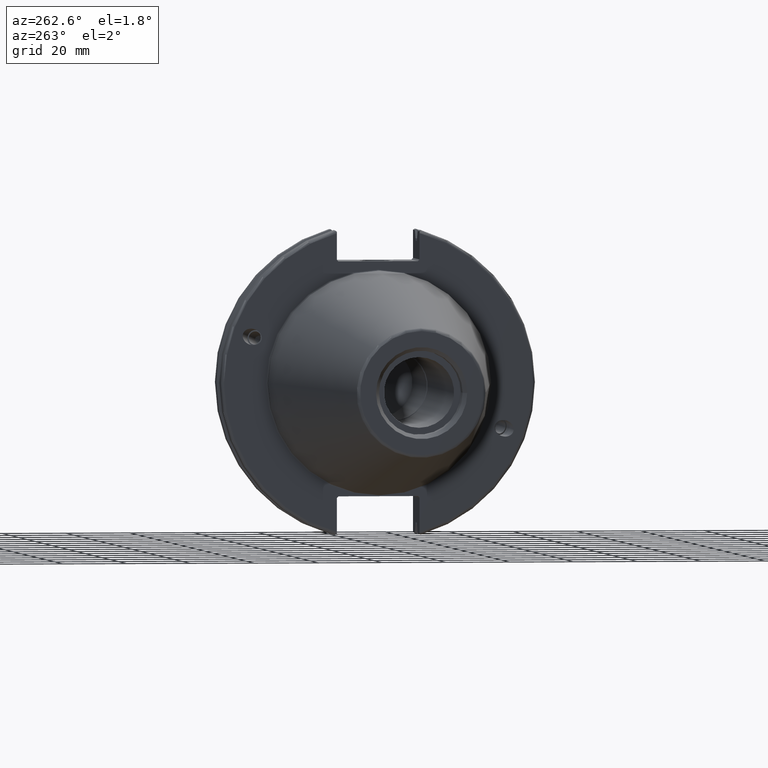
[diagram: clean part render]
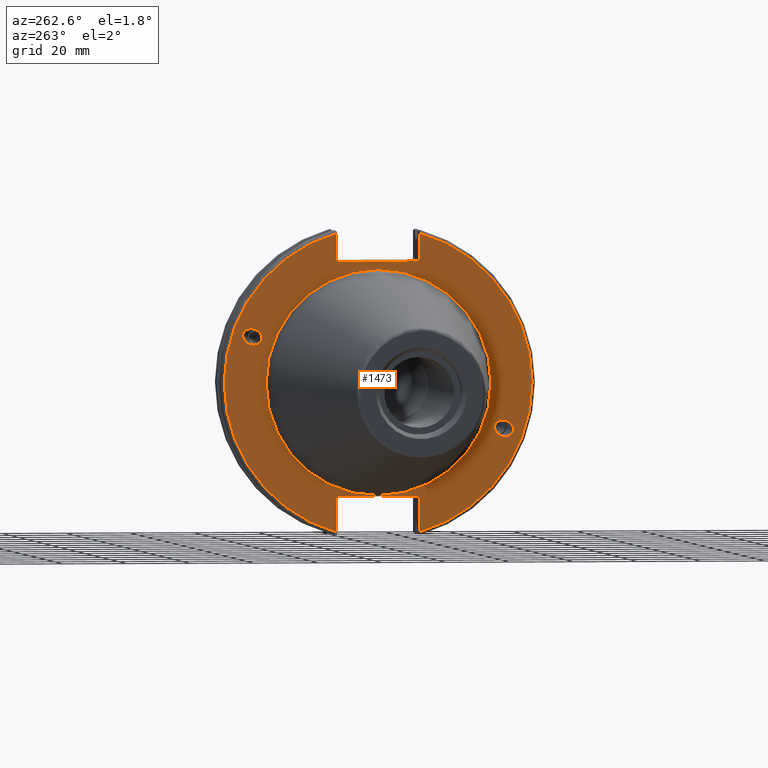
[diagram: same view with one face highlighted and labeled with its STEP entity id]
A machine part, auxiliary view. The second image highlights one B-rep face of the part: STEP entity #1473.
In plain terms, the highlighted planar face has unit normal (-1, 0, 0).
Its self-contained STEP definition (entity closure, byte-faithful):
#34=ELLIPSE('',#1588,3.05193647190364,2.5);
#35=ELLIPSE('',#1621,3.05193647190364,2.5);
#133=LINE('',#2741,#225);
#134=LINE('',#2743,#226);
#135=LINE('',#2745,#227);
#136=LINE('',#2747,#228);
#137=LINE('',#2749,#229);
#138=LINE('',#2753,#230);
#139=LINE('',#2755,#231);
#140=LINE('',#2757,#232);
#141=LINE('',#2759,#233);
#142=LINE('',#2760,#234);
#225=VECTOR('',#1932,10.);
#226=VECTOR('',#1933,10.);
#227=VECTOR('',#1934,10.);
#228=VECTOR('',#1935,10.);
#229=VECTOR('',#1936,10.);
#230=VECTOR('',#1939,10.);
#231=VECTOR('',#1940,10.);
#232=VECTOR('',#1941,10.);
#233=VECTOR('',#1942,10.);
#234=VECTOR('',#1943,10.);
#310=FACE_BOUND('',#487,.T.);
#311=FACE_BOUND('',#488,.T.);
#312=FACE_BOUND('',#489,.T.);
#326=PLANE('',#1631);
#390=FACE_OUTER_BOUND('',#486,.T.);
#486=EDGE_LOOP('',(#1186,#1187,#1188,#1189,#1190,#1191,#1192,#1193,#1194,
#1195,#1196,#1197));
#487=EDGE_LOOP('',(#1198));
#488=EDGE_LOOP('',(#1199));
#489=EDGE_LOOP('',(#1200));
#584=CIRCLE('',#1629,35.125);
#586=CIRCLE('',#1632,48.2125);
#587=CIRCLE('',#1633,48.2125);
#664=VERTEX_POINT('',#2506);
#700=VERTEX_POINT('',#2717);
#705=VERTEX_POINT('',#2732);
#706=VERTEX_POINT('',#2737);
#707=VERTEX_POINT('',#2738);
#708=VERTEX_POINT('',#2740);
#709=VERTEX_POINT('',#2742);
#710=VERTEX_POINT('',#2744);
#711=VERTEX_POINT('',#2746);
#712=VERTEX_POINT('',#2748);
#713=VERTEX_POINT('',#2750);
#714=VERTEX_POINT('',#2752);
#715=VERTEX_POINT('',#2754);
#716=VERTEX_POINT('',#2756);
#717=VERTEX_POINT('',#2758);
#828=EDGE_CURVE('',#664,#664,#34,.T.);
#876=EDGE_CURVE('',#700,#700,#35,.T.);
#883=EDGE_CURVE('',#705,#705,#584,.T.);
#885=EDGE_CURVE('',#706,#707,#586,.T.);
#886=EDGE_CURVE('',#706,#708,#133,.T.);
#887=EDGE_CURVE('',#709,#708,#134,.T.);
#888=EDGE_CURVE('',#709,#710,#135,.T.);
#889=EDGE_CURVE('',#711,#710,#136,.T.);
#890=EDGE_CURVE('',#711,#712,#137,.T.);
#891=EDGE_CURVE('',#713,#712,#587,.T.);
#892=EDGE_CURVE('',#713,#714,#138,.T.);
#893=EDGE_CURVE('',#715,#714,#139,.T.);
#894=EDGE_CURVE('',#715,#716,#140,.T.);
#895=EDGE_CURVE('',#717,#716,#141,.T.);
#896=EDGE_CURVE('',#717,#707,#142,.T.);
#1186=ORIENTED_EDGE('',*,*,#885,.F.);
#1187=ORIENTED_EDGE('',*,*,#886,.T.);
#1188=ORIENTED_EDGE('',*,*,#887,.F.);
#1189=ORIENTED_EDGE('',*,*,#888,.T.);
#1190=ORIENTED_EDGE('',*,*,#889,.F.);
#1191=ORIENTED_EDGE('',*,*,#890,.T.);
#1192=ORIENTED_EDGE('',*,*,#891,.F.);
#1193=ORIENTED_EDGE('',*,*,#892,.T.);
#1194=ORIENTED_EDGE('',*,*,#893,.F.);
#1195=ORIENTED_EDGE('',*,*,#894,.T.);
#1196=ORIENTED_EDGE('',*,*,#895,.F.);
#1197=ORIENTED_EDGE('',*,*,#896,.T.);
#1198=ORIENTED_EDGE('',*,*,#828,.T.);
#1199=ORIENTED_EDGE('',*,*,#876,.T.);
#1200=ORIENTED_EDGE('',*,*,#883,.F.);
#1473=ADVANCED_FACE('',(#390,#310,#311,#312),#326,.T.);
#1588=AXIS2_PLACEMENT_3D('',#2508,#1825,#1826);
#1621=AXIS2_PLACEMENT_3D('',#2719,#1906,#1907);
#1629=AXIS2_PLACEMENT_3D('',#2734,#1924,#1925);
#1631=AXIS2_PLACEMENT_3D('',#2736,#1928,#1929);
#1632=AXIS2_PLACEMENT_3D('',#2739,#1930,#1931);
#1633=AXIS2_PLACEMENT_3D('',#2751,#1937,#1938);
#1825=DIRECTION('center_axis',(1.,0.,0.));
#1826=DIRECTION('ref_axis',(0.,-0.939692620785908,-0.342020143325668));
#1906=DIRECTION('center_axis',(1.,0.,0.));
#1907=DIRECTION('ref_axis',(0.,0.939692620785908,0.342020143325669));
#1924=DIRECTION('center_axis',(-1.,0.,0.));
#1925=DIRECTION('ref_axis',(0.,-1.,1.83697019872103E-16));
#1928=DIRECTION('center_axis',(-1.,0.,0.));
#1929=DIRECTION('ref_axis',(0.,0.,1.));
#1930=DIRECTION('center_axis',(1.,0.,0.));
#1931=DIRECTION('ref_axis',(0.,-1.,1.60812264967664E-16));
#1932=DIRECTION('',(0.,0.,-1.));
#1933=DIRECTION('',(0.,-0.707106781186549,0.707106781186546));
#1934=DIRECTION('',(0.,1.,0.));
#1935=DIRECTION('',(0.,-0.707106781186549,-0.707106781186546));
#1936=DIRECTION('',(0.,0.,1.));
#1937=DIRECTION('center_axis',(1.,0.,0.));
#1938=DIRECTION('ref_axis',(0.,1.,-6.12323399573677E-17));
#1939=DIRECTION('',(0.,0.,1.));
#1940=DIRECTION('',(0.,0.707106781186549,-0.707106781186546));
#1941=DIRECTION('',(0.,-1.,0.));
#1942=DIRECTION('',(0.,0.707106781186549,0.707106781186546));
#1943=DIRECTION('',(0.,0.,-1.));
#2506=CARTESIAN_POINT('',(3.175,-36.5992078912529,-13.3210222701368));
#2508=CARTESIAN_POINT('Origin',(3.175,-39.4670900730082,-14.3648460196781));
#2717=CARTESIAN_POINT('',(3.175,36.5992078912529,13.3210222701368));
#2719=CARTESIAN_POINT('Origin',(3.175,39.4670900730082,14.3648460196781));
#2732=CARTESIAN_POINT('',(3.175,-4.30157188200508E-15,35.125));
#2734=CARTESIAN_POINT('Origin',(3.175,0.,0.));
#2736=CARTESIAN_POINT('Origin',(3.175,49.2125,0.));
#2737=CARTESIAN_POINT('',(3.175,-12.95,46.4407434937254));
#2738=CARTESIAN_POINT('',(3.175,-12.95,-46.4407434937254));
#2739=CARTESIAN_POINT('Origin',(3.175,0.,0.));
#2740=CARTESIAN_POINT('',(3.175,-12.95,38.219));
#2741=CARTESIAN_POINT('',(3.175,-12.95,18.8595));
#2742=CARTESIAN_POINT('',(3.175,-12.45,37.719));
#2743=CARTESIAN_POINT('',(3.175,12.2703750000001,12.998625));
#2744=CARTESIAN_POINT('',(3.175,12.45,37.719));
#2745=CARTESIAN_POINT('',(3.175,24.60625,37.719));
#2746=CARTESIAN_POINT('',(3.175,12.95,38.219));
#2747=CARTESIAN_POINT('',(3.175,12.335875,37.604875));
#2748=CARTESIAN_POINT('',(3.175,12.95,46.4407434937254));
#2749=CARTESIAN_POINT('',(3.175,12.95,18.8595));
#2750=CARTESIAN_POINT('',(3.175,12.95,-46.4407434937254));
#2751=CARTESIAN_POINT('Origin',(3.175,0.,0.));
#2752=CARTESIAN_POINT('',(3.175,12.95,-35.806));
#2753=CARTESIAN_POINT('',(3.175,12.95,-17.653));
#2754=CARTESIAN_POINT('',(3.175,12.45,-35.306));
#2755=CARTESIAN_POINT('',(3.175,12.939125,-35.795125));
#2756=CARTESIAN_POINT('',(3.175,-12.45,-35.306));
#2757=CARTESIAN_POINT('',(3.175,24.60625,-35.306));
#2758=CARTESIAN_POINT('',(3.175,-12.95,-35.806));
#2759=CARTESIAN_POINT('',(3.175,11.6671250000001,-11.188875));
#2760=CARTESIAN_POINT('',(3.175,-12.95,-17.653));